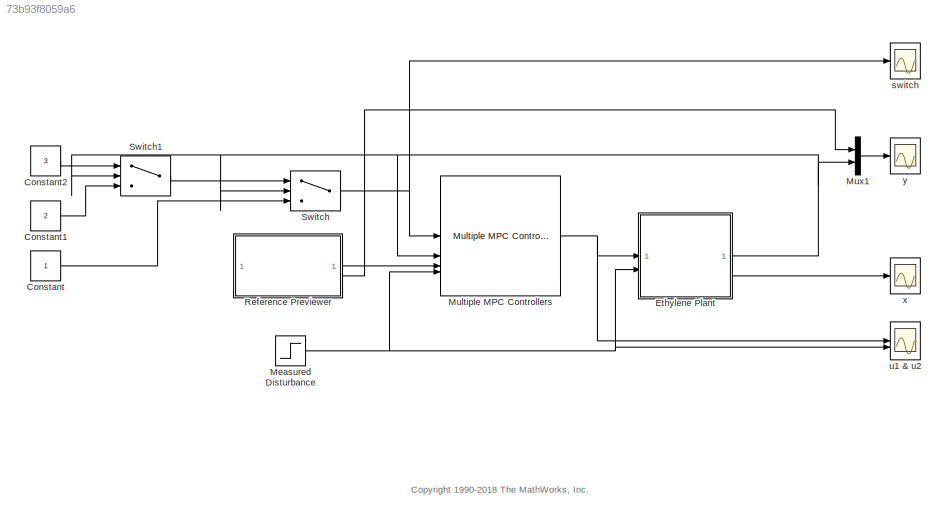
MODEL slx_73b93f8059a6
KIND model
CONFIG AbsTol = auto
CONFIG EnableMultiTasking = off
CONFIG FixedStep = auto
CONFIG MaxStep = auto
CONFIG MinStep = auto
CONFIG RelTol = 1e-3
CONFIG SampleTimeConstraint = Unconstrained
CONFIG SolverName = VariableStepAuto
CONFIG StartTime = 0.0
CONFIG StopTime = Tstop
BLOCK [Constant] Constant
BLOCK [Constant] Constant1
  Value = 2
BLOCK [Constant] Constant2
  Value = 3
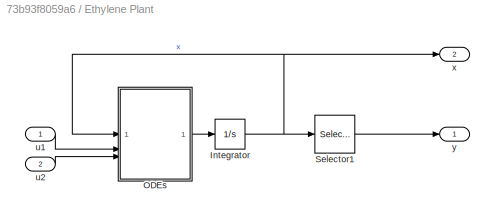
BLOCK [SubSystem] Ethylene Plant
BLOCK [Integrator] Ethylene Plant/Integrator
  InitialCondition = xLow
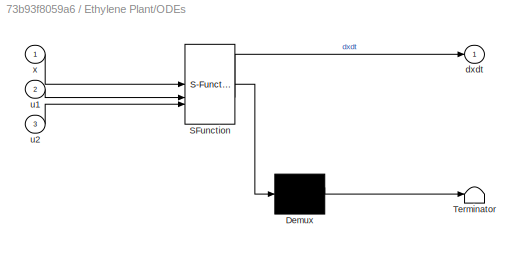
BLOCK [SubSystem] Ethylene Plant/ODEs
  ErrorFcn = Stateflow.Translate.translate
  PermitHierarchicalResolution = ExplicitOnly
  SFBlockType = MATLAB Function
  TreatAsAtomicUnit = on
BLOCK [Demux] Ethylene Plant/ODEs/ Demux 
  Outputs = 1
BLOCK [S-Function] Ethylene Plant/ODEs/ SFunction 
  EnableBusSupport = off
  FunctionName = sf_sfun
  PortCounts = [3 2]
  SFcnIsStateOwnerBlock = off
  SFunctionDeploymentMode = off
  Tag = Stateflow S-Function 3
BLOCK [Terminator] Ethylene Plant/ODEs/ Terminator 
BLOCK [Outport] Ethylene Plant/ODEs/dxdt
  VectorParamsAs1DForOutWhenUnconnected = off
BLOCK [Inport] Ethylene Plant/ODEs/u1
  Port = 2
BLOCK [Inport] Ethylene Plant/ODEs/u2
  Port = 3
BLOCK [Inport] Ethylene Plant/ODEs/x
BLOCK [Selector] Ethylene Plant/Selector1
  IndexOptions = Index vector (dialog)
  Indices = 3
  InputPortWidth = 4
  OutputSizes = 1
BLOCK [Inport] Ethylene Plant/u1
BLOCK [Inport] Ethylene Plant/u2
  Port = 2
BLOCK [Outport] Ethylene Plant/x
  Port = 2
  VectorParamsAs1DForOutWhenUnconnected = off
BLOCK [Outport] Ethylene Plant/y
  VectorParamsAs1DForOutWhenUnconnected = off
BLOCK [Step] Measured Disturbance
  After = uLow(2)+0.1
  Before = uLow(2)
  SampleTime = Ts
  Time = 200
BLOCK [Reference] Multiple MPC Controllers  REF=mpclib/Multiple MPC Controllers  (lib defined in mdl_ae329e0e0455)
  SourceBlock = mpclib/Multiple MPC Controllers
  SourceType = Multiple MPC
BLOCK [Mux] Mux1
  DisplayOption = bar
  Inputs = 2
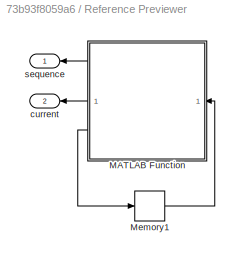
BLOCK [SubSystem] Reference Previewer
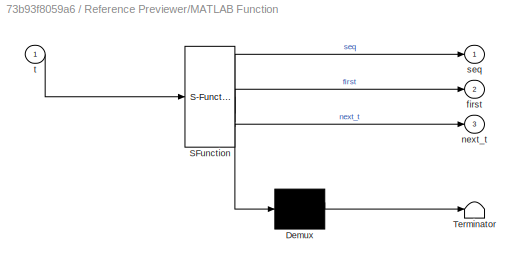
BLOCK [SubSystem] Reference Previewer/MATLAB Function
  ErrorFcn = Stateflow.Translate.translate
  PermitHierarchicalResolution = ExplicitOnly
  SFBlockType = MATLAB Function
  TreatAsAtomicUnit = on
BLOCK [Demux] Reference Previewer/MATLAB Function/ Demux 
  Outputs = 1
BLOCK [S-Function] Reference Previewer/MATLAB Function/ SFunction 
  EnableBusSupport = off
  FunctionName = sf_sfun
  Parameters = data,steps
  PortCounts = [1 4]
  SFcnIsStateOwnerBlock = off
  SFunctionDeploymentMode = off
  Tag = Stateflow S-Function 2
BLOCK [Terminator] Reference Previewer/MATLAB Function/ Terminator 
BLOCK [Outport] Reference Previewer/MATLAB Function/first
  Port = 2
  VectorParamsAs1DForOutWhenUnconnected = off
BLOCK [Outport] Reference Previewer/MATLAB Function/next_t
  Port = 3
  VectorParamsAs1DForOutWhenUnconnected = off
BLOCK [Outport] Reference Previewer/MATLAB Function/seq
  VectorParamsAs1DForOutWhenUnconnected = off
BLOCK [Inport] Reference Previewer/MATLAB Function/t
BLOCK [Memory] Reference Previewer/Memory1
  InheritSampleTime = on
  LinearizeAsDelay = on
BLOCK [Outport] Reference Previewer/current
  Port = 2
  VectorParamsAs1DForOutWhenUnconnected = off
BLOCK [Outport] Reference Previewer/sequence
  VectorParamsAs1DForOutWhenUnconnected = off
BLOCK [Switch] Switch
  Criteria = u2 > Threshold
  InputSameDT = off
  SaturateOnIntegerOverflow = off
  Threshold = 0.035
BLOCK [Switch] Switch1
  Criteria = u2 > Threshold
  InputSameDT = off
  SaturateOnIntegerOverflow = off
  Threshold = 0.045
BLOCK [Scope] switch
  Floating = off
  NumInputPorts = 1
  ScopeSpecificationString = Simulink.scopes.TimeScopeBlockCfg('CurrentConfiguration', extmgr.ConfigurationSet(extmgr.Configuration('Core','General UI',true),extmgr.Configuration('Core','Source UI',true),extmgr.Configuration('Sources','WiredSimulink',true,'DataLoggingVariableName','ScopeData1','SampleTime','0'),extmgr.Configuration('Visuals','Time Domain',true,'SerializedDisplays',{struct('MinYLimReal','0.75','MaxYLimReal','3...<+1499ch>
BLOCK [Scope] u1 & u2
  Floating = off
  NumInputPorts = 2
  ScopeSpecificationString = Simulink.scopes.TimeScopeBlockCfg('CurrentConfiguration', extmgr.ConfigurationSet(extmgr.Configuration('Core','General UI',true),extmgr.Configuration('Core','Source UI',true),extmgr.Configuration('Sources','WiredSimulink',true,'DataLoggingVariableName','ScopeData1','SampleTime','0'),extmgr.Configuration('Visuals','Time Domain',true,'SerializedDisplays',{struct('MinYLimReal','0.0354','MaxYLimReal',...<+2034ch>
BLOCK [Scope] x
  Floating = off
  NumInputPorts = 1
  ScopeSpecificationString = Simulink.scopes.TimeScopeBlockCfg('CurrentConfiguration', extmgr.ConfigurationSet(extmgr.Configuration('Core','General UI',true),extmgr.Configuration('Core','Source UI',true),extmgr.Configuration('Sources','WiredSimulink',true,'DataLoggingVariableName','ScopeData1','SampleTime','0'),extmgr.Configuration('Visuals','Time Domain',true,'SerializedDisplays',{struct('MinYLimReal','-0.08943','MaxYLimReal...<+1503ch>
BLOCK [Scope] y
  Floating = off
  NumInputPorts = 1
  ScopeSpecificationString = Simulink.scopes.TimeScopeBlockCfg('CurrentConfiguration', extmgr.ConfigurationSet(extmgr.Configuration('Core','General UI',true),extmgr.Configuration('Core','Source UI',true),extmgr.Configuration('Sources','WiredSimulink',true,'DataLoggingVariableName','ScopeData2','SampleTime','0'),extmgr.Configuration('Visuals','Time Domain',true,'SerializedDisplays',{struct('MinYLimReal','0.0286','MaxYLimReal',...<+1526ch>
ANNOTATION (root): <copyright redacted>
LINE Constant1:1 -> Switch1:3
LINE Constant2:1 -> Switch1:1
LINE Constant:1 -> Switch:3
NET Ethylene Plant/Integrator:1 -> Ethylene Plant/ODEs:1, Ethylene Plant/Selector1:1, Ethylene Plant/x:1
LINE Ethylene Plant/ODEs:1 -> Ethylene Plant/Integrator:1
LINE Ethylene Plant/Selector1:1 -> Ethylene Plant/y:1
LINE Ethylene Plant/u1:1 -> Ethylene Plant/ODEs:2
LINE Ethylene Plant/u2:1 -> Ethylene Plant/ODEs:3
NET Ethylene Plant:1 -> Multiple MPC Controllers:2, Mux1:2, Switch1:2, Switch:2
LINE Ethylene Plant:2 -> x:1
NET Measured Disturbance:1 -> Ethylene Plant:2, Multiple MPC Controllers:4, u1 & u2:2
NET Multiple MPC Controllers:1 -> Ethylene Plant:1, u1 & u2:1
LINE Mux1:1 -> y:1
LINE Reference Previewer/MATLAB Function:1 -> Reference Previewer/sequence:1
LINE Reference Previewer/MATLAB Function:2 -> Reference Previewer/current:1
LINE Reference Previewer/MATLAB Function:3 -> Reference Previewer/Memory1:1
LINE Reference Previewer/Memory1:1 -> Reference Previewer/MATLAB Function:1
LINE Reference Previewer:1 -> Multiple MPC Controllers:3
LINE Reference Previewer:2 -> Mux1:1
LINE Switch1:1 -> Switch:1
NET Switch:1 -> Multiple MPC Controllers:1, switch:1
note: NET lines group one-source signal fan-out (src -> all destinations, sorted); 1:1 wires keep LINE
CHART Reference Previewer/MATLAB Function states=1 transitions=1
  STATE_LABEL 'eML_blk_kernel()'
  STATE_LABEL "SCRIPT:\nfunction [seq,first,next_t] = fcn(data,steps,t)\n%#codegen\n[seq,first,next_t] = mpcblock_preview('ref',data,steps,t);"
CHART Ethylene Plant/ODEs states=1 transitions=1
  STATE_LABEL 'eML_blk_kernel()'
  STATE_LABEL 'SCRIPT:\nfunction dxdt = fcn(x, u1, u2)\n\n% Compute time derivatives and outputs for the ethylene oxide reactor\n\n% Compute state derivatives\ndxdt = oxidationStateFcn(x, [u1;u2]);\n'
CHART  states=0 transitions=0
CHART  states=0 transitions=0
